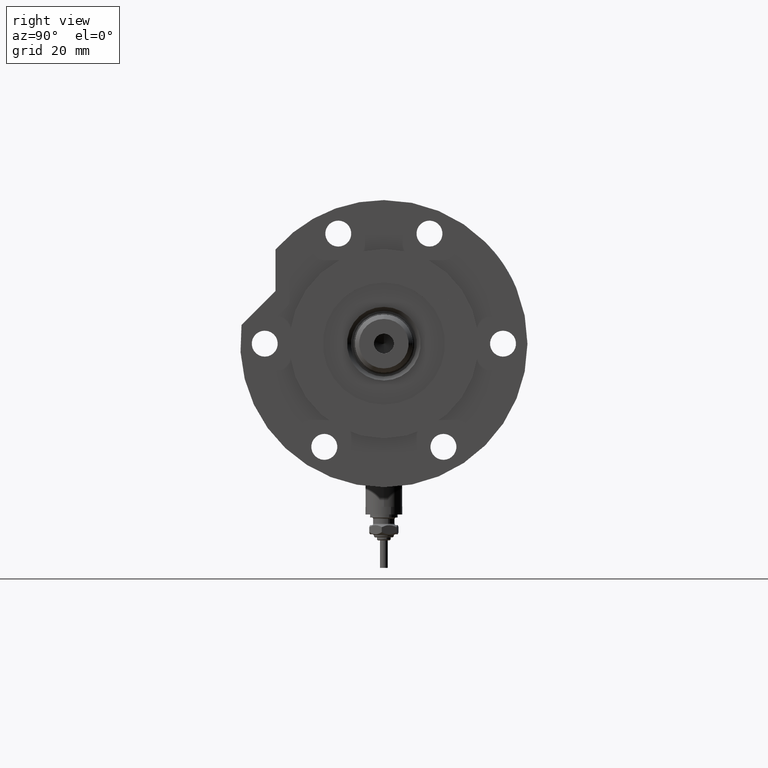
[diagram: clean part render]
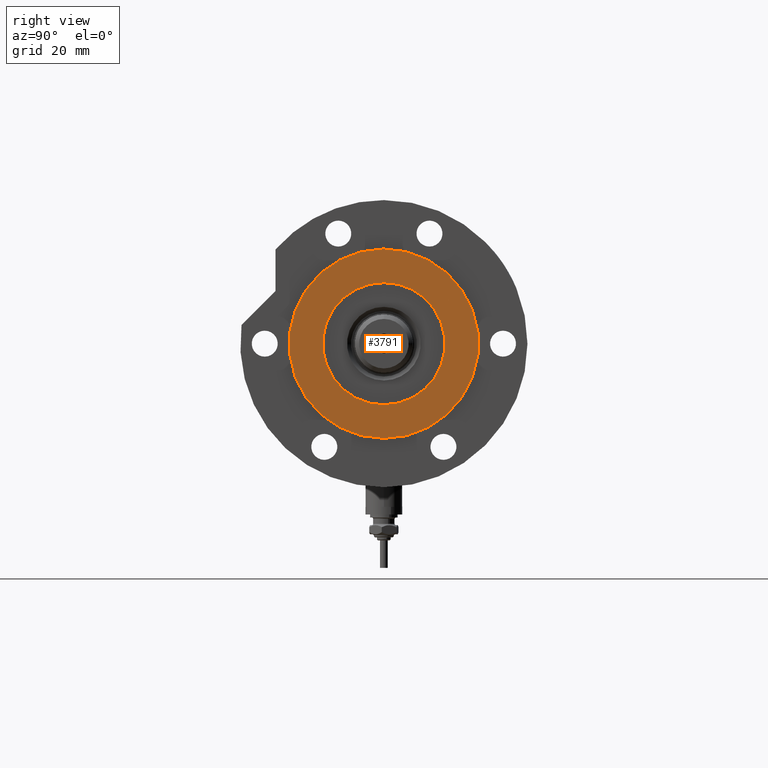
[diagram: same view with one face highlighted and labeled with its STEP entity id]
A machine part, right view. The second image highlights one B-rep face of the part: STEP entity #3791.
In plain terms, the highlighted planar face has unit normal (1, 0, -0).
Its self-contained STEP definition (entity closure, byte-faithful):
#56 = AXIS2_PLACEMENT_3D ( 'NONE', #7339, #1849, #827 ) ;
#195 = DIRECTION ( 'NONE',  ( 1.000000000000000000, 0.000000000000000000, 0.000000000000000000 ) ) ;
#225 = EDGE_CURVE ( 'NONE', #1156, #7204, #1427, .T. ) ;
#230 = DIRECTION ( 'NONE',  ( 1.000000000000000000, 0.000000000000000000, 0.000000000000000000 ) ) ;
#488 = DIRECTION ( 'NONE',  ( 0.000000000000000000, 0.000000000000000000, 1.000000000000000000 ) ) ;
#575 = AXIS2_PLACEMENT_3D ( 'NONE', #5986, #488, #2934 ) ;
#668 = DIRECTION ( 'NONE',  ( 0.000000000000000000, 0.000000000000000000, 1.000000000000000000 ) ) ;
#827 = DIRECTION ( 'NONE',  ( 1.000000000000000000, 0.000000000000000000, 0.000000000000000000 ) ) ;
#1156 = VERTEX_POINT ( 'NONE', #2896 ) ;
#1212 = CIRCLE ( 'NONE', #56, 31.00000000000000711 ) ;
#1427 = CIRCLE ( 'NONE', #3317, 31.00000000000000711 ) ;
#1849 = DIRECTION ( 'NONE',  ( 0.000000000000000000, 0.000000000000000000, 1.000000000000000000 ) ) ;
#2208 = ORIENTED_EDGE ( 'NONE', *, *, #7678, .F. ) ;
#2263 = CIRCLE ( 'NONE', #575, 20.00000000000000000 ) ;
#2415 = PLANE ( 'NONE',  #2485 ) ;
#2485 = AXIS2_PLACEMENT_3D ( 'NONE', #6054, #4867, #7266 ) ;
#2896 = CARTESIAN_POINT ( 'NONE',  ( -31.00000000000000711, 0.000000000000000000, 19.00000000000000355 ) ) ;
#2900 = ORIENTED_EDGE ( 'NONE', *, *, #6192, .T. ) ;
#2923 = CARTESIAN_POINT ( 'NONE',  ( 20.00000000000000000, 0.000000000000000000, 19.00000000000000355 ) ) ;
#2934 = DIRECTION ( 'NONE',  ( 1.000000000000000000, 0.000000000000000000, 0.000000000000000000 ) ) ;
#2993 = ORIENTED_EDGE ( 'NONE', *, *, #225, .T. ) ;
#3042 = VERTEX_POINT ( 'NONE', #2923 ) ;
#3242 = EDGE_LOOP ( 'NONE', ( #2208, #4757 ) ) ;
#3262 = DIRECTION ( 'NONE',  ( 0.000000000000000000, 0.000000000000000000, 1.000000000000000000 ) ) ;
#3317 = AXIS2_PLACEMENT_3D ( 'NONE', #5646, #668, #195 ) ;
#3791 = ADVANCED_FACE ( 'NONE', ( #4140, #6137 ), #2415, .T. ) ;
#4140 = FACE_BOUND ( 'NONE', #3242, .T. ) ;
#4308 = CARTESIAN_POINT ( 'NONE',  ( 31.00000000000000711, 3.796405077356795904E-15, 19.00000000000000355 ) ) ;
#4326 = VERTEX_POINT ( 'NONE', #6152 ) ;
#4757 = ORIENTED_EDGE ( 'NONE', *, *, #7761, .F. ) ;
#4819 = CIRCLE ( 'NONE', #5830, 20.00000000000000000 ) ;
#4867 = DIRECTION ( 'NONE',  ( 0.000000000000000000, 0.000000000000000000, 1.000000000000000000 ) ) ;
#5322 = EDGE_LOOP ( 'NONE', ( #2993, #2900 ) ) ;
#5646 = CARTESIAN_POINT ( 'NONE',  ( 0.000000000000000000, 0.000000000000000000, 19.00000000000000355 ) ) ;
#5830 = AXIS2_PLACEMENT_3D ( 'NONE', #6326, #3262, #230 ) ;
#5986 = CARTESIAN_POINT ( 'NONE',  ( 0.000000000000000000, 0.000000000000000000, 19.00000000000000355 ) ) ;
#6054 = CARTESIAN_POINT ( 'NONE',  ( 0.000000000000000000, 0.000000000000000000, 19.00000000000000355 ) ) ;
#6137 = FACE_OUTER_BOUND ( 'NONE', #5322, .T. ) ;
#6152 = CARTESIAN_POINT ( 'NONE',  ( -20.00000000000000000, 2.449293598294706513E-15, 19.00000000000000355 ) ) ;
#6192 = EDGE_CURVE ( 'NONE', #7204, #1156, #1212, .T. ) ;
#6326 = CARTESIAN_POINT ( 'NONE',  ( 0.000000000000000000, 0.000000000000000000, 19.00000000000000355 ) ) ;
#7204 = VERTEX_POINT ( 'NONE', #4308 ) ;
#7266 = DIRECTION ( 'NONE',  ( 1.000000000000000000, 0.000000000000000000, -0.000000000000000000 ) ) ;
#7339 = CARTESIAN_POINT ( 'NONE',  ( 0.000000000000000000, 0.000000000000000000, 19.00000000000000355 ) ) ;
#7678 = EDGE_CURVE ( 'NONE', #3042, #4326, #4819, .T. ) ;
#7761 = EDGE_CURVE ( 'NONE', #4326, #3042, #2263, .T. ) ;